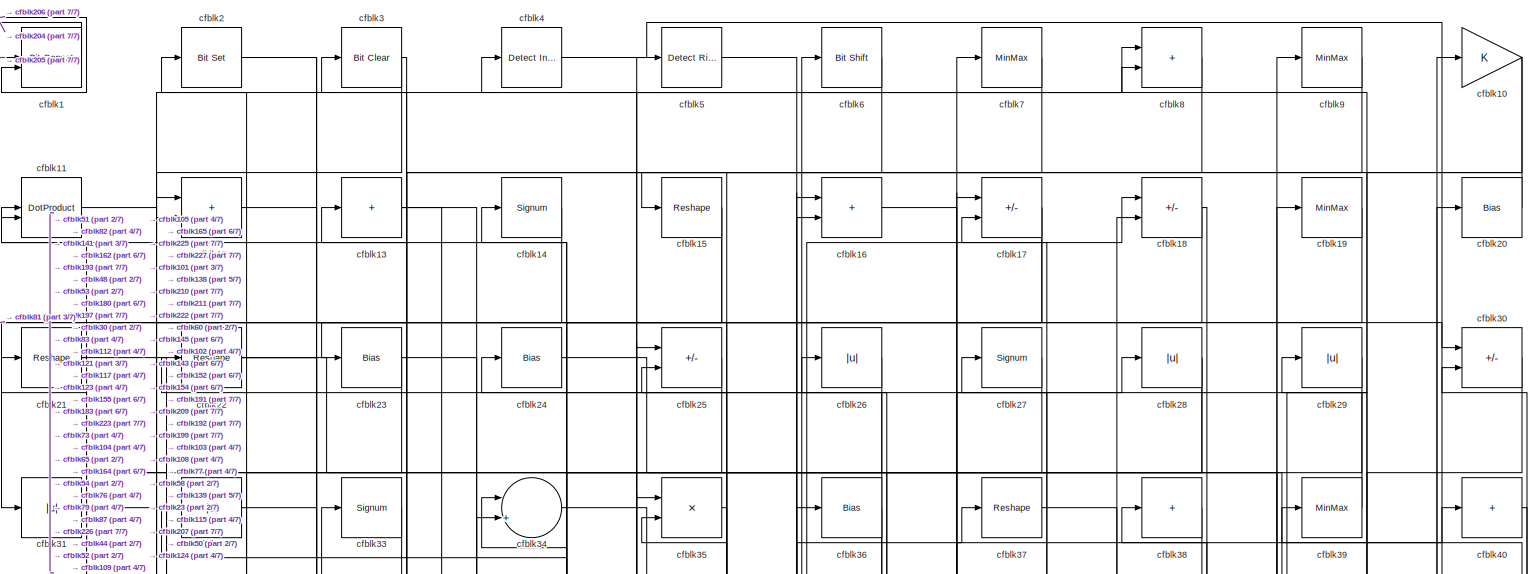
[diagram: root canvas - part 1/7, full width, top band]
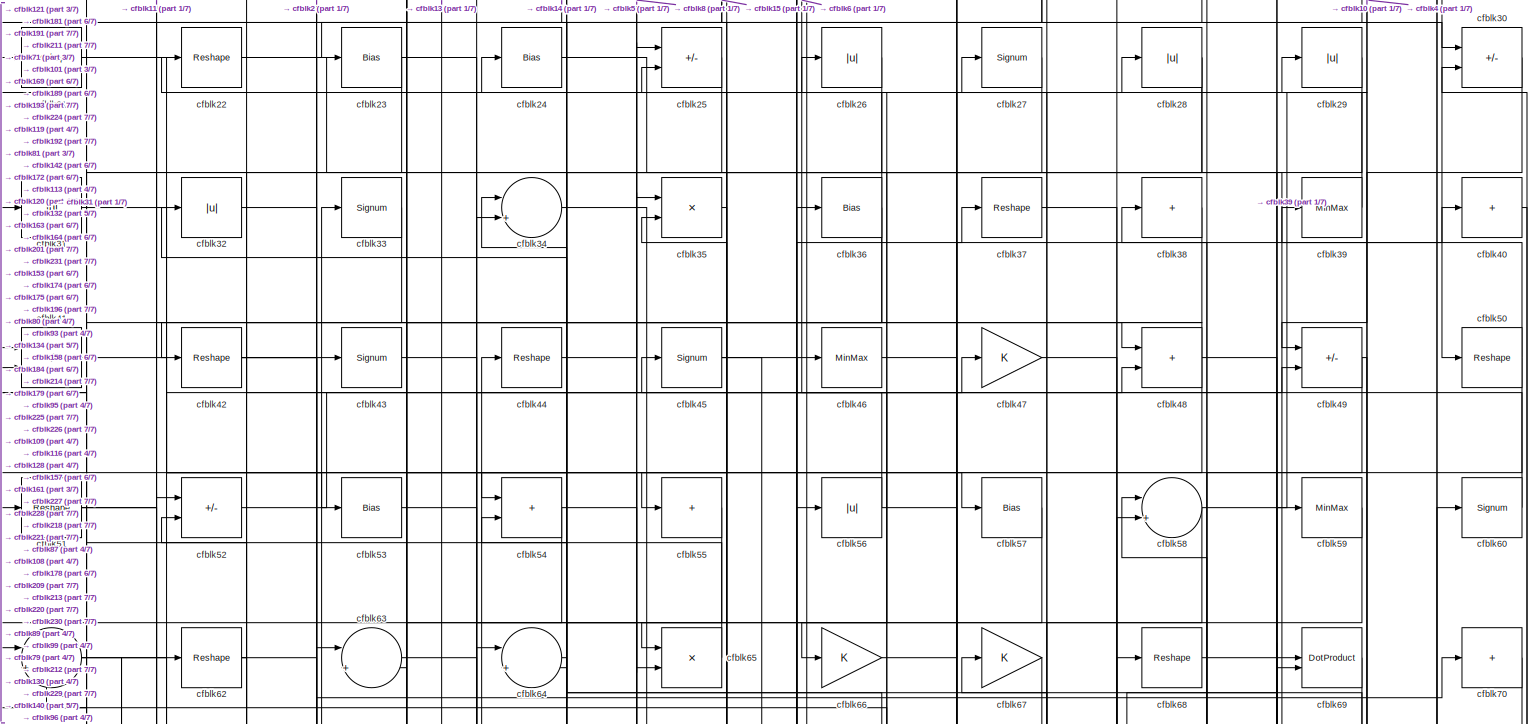
[diagram: root canvas - part 2/7, full width, top band]
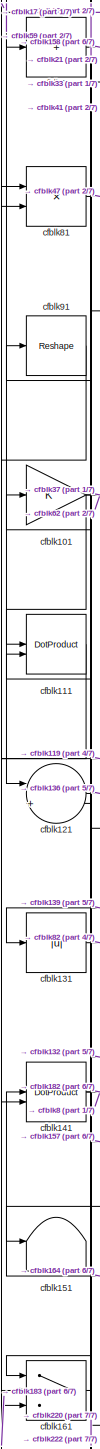
[diagram: root canvas - part 3/7, middle left region]
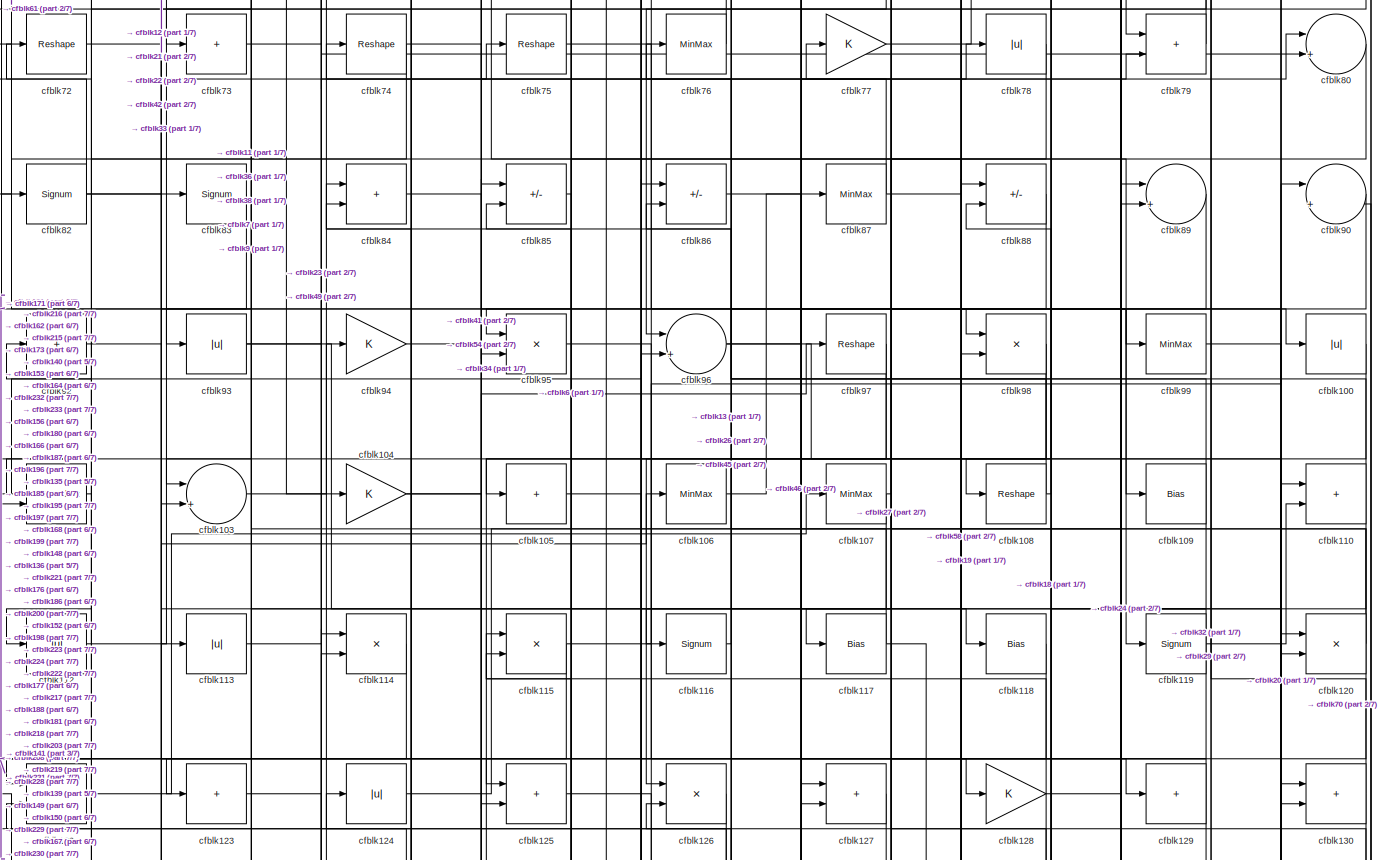
[diagram: root canvas - part 4/7, full width, middle band]
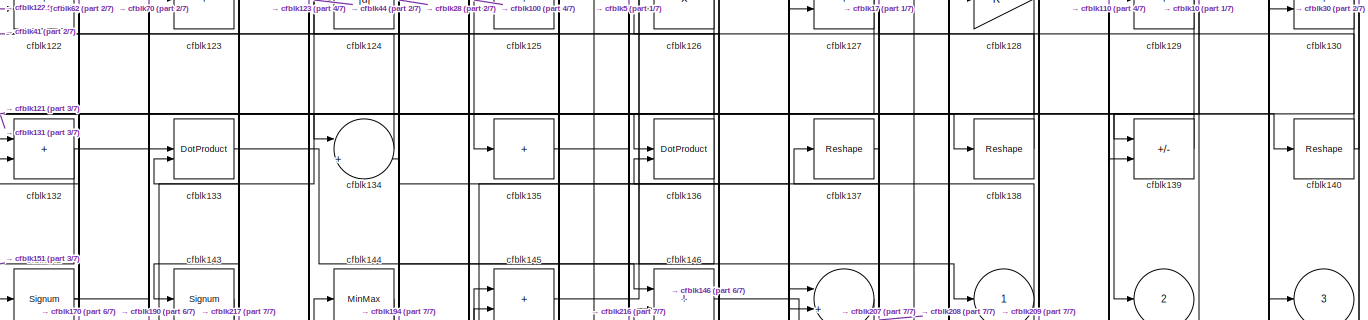
[diagram: root canvas - part 5/7, full width, middle band]
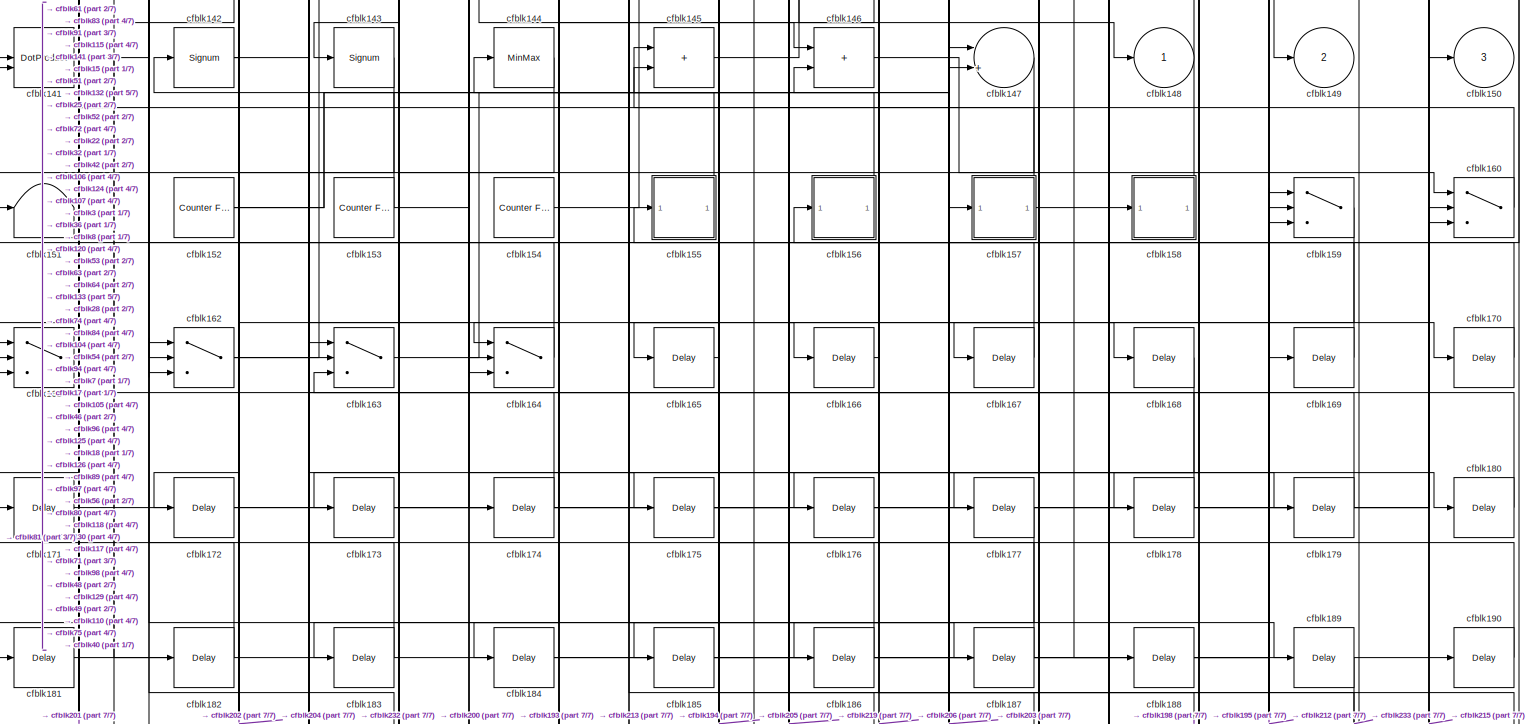
[diagram: root canvas - part 6/7, full width, bottom band]
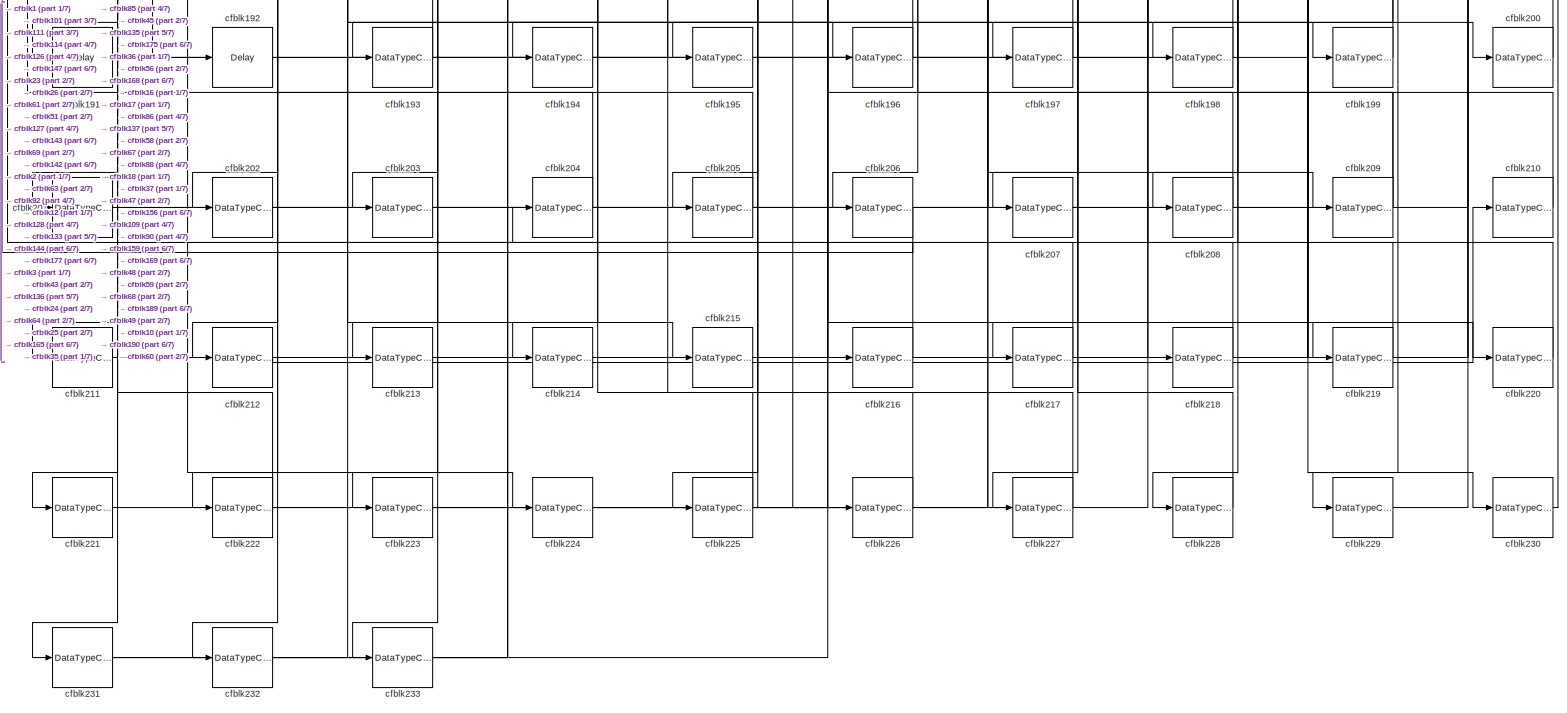
[diagram: root canvas - part 7/7, full width, bottom band]
MODEL slx_88276f80ee25
KIND model
CONFIG AbsTol = auto
CONFIG EnableMultiTasking = off
CONFIG FixedStep = auto
CONFIG MaxStep = auto
CONFIG MinStep = auto
CONFIG RelTol = 1e-3
CONFIG SampleTimeConstraint = Unconstrained
CONFIG SolverName = VariableStepAuto
CONFIG StartTime = 0.0
CONFIG StopTime = 10.0
BLOCK [Reference] cfblk1  REF=hdlsllib/Logic and Bit
Operations/Bit Concat
  SourceBlock = hdlsllib/Logic and Bit\nOperations/Bit Concat
  SourceType = Bit Concat
BLOCK [Gain] cfblk10
BLOCK [Abs] cfblk100
  SaturateOnIntegerOverflow = off
BLOCK [Gain] cfblk101
BLOCK [DotProduct] cfblk102
  OutDataTypeStr = Inherit: Inherit via internal rule
BLOCK [Sum] cfblk103
  Inputs = |++
BLOCK [Gain] cfblk104
BLOCK [Sum] cfblk105
  IconShape = rectangular
  Inputs = +
BLOCK [MinMax] cfblk106
BLOCK [MinMax] cfblk107
BLOCK [Reshape] cfblk108
BLOCK [Bias] cfblk109
  Bias = 0.0
  SaturateOnIntegerOverflow = off
BLOCK [DotProduct] cfblk11
  OutDataTypeStr = Inherit: Inherit via internal rule
BLOCK [Sum] cfblk110
  IconShape = rectangular
BLOCK [DotProduct] cfblk111
  OutDataTypeStr = Inherit: Inherit via internal rule
BLOCK [Abs] cfblk112
  SaturateOnIntegerOverflow = off
BLOCK [Abs] cfblk113
  SaturateOnIntegerOverflow = off
BLOCK [Product] cfblk114
  Inputs = */
  RndMeth = Zero
  SaturateOnIntegerOverflow = on
BLOCK [Product] cfblk115
  Inputs = */
  RndMeth = Zero
  SaturateOnIntegerOverflow = on
BLOCK [Signum] cfblk116
BLOCK [Bias] cfblk117
  Bias = 0.0
  SaturateOnIntegerOverflow = off
BLOCK [Bias] cfblk118
  Bias = 0.0
  SaturateOnIntegerOverflow = off
BLOCK [Signum] cfblk119
BLOCK [Sum] cfblk12
  IconShape = rectangular
BLOCK [Product] cfblk120
  Inputs = */
  RndMeth = Zero
  SaturateOnIntegerOverflow = on
BLOCK [Sum] cfblk121
  Inputs = |++
BLOCK [Sum] cfblk122
  IconShape = rectangular
BLOCK [Sum] cfblk123
  IconShape = rectangular
  Inputs = +
BLOCK [Abs] cfblk124
  SaturateOnIntegerOverflow = off
BLOCK [Sum] cfblk125
  IconShape = rectangular
BLOCK [Product] cfblk126
  Inputs = */
  RndMeth = Zero
  SaturateOnIntegerOverflow = on
BLOCK [Sum] cfblk127
  IconShape = rectangular
BLOCK [Gain] cfblk128
BLOCK [Sum] cfblk129
  IconShape = rectangular
  Inputs = +
BLOCK [Sum] cfblk13
  IconShape = rectangular
  Inputs = +
BLOCK [Sum] cfblk130
  IconShape = rectangular
BLOCK [Abs] cfblk131
  SaturateOnIntegerOverflow = off
BLOCK [Sum] cfblk132
  IconShape = rectangular
BLOCK [DotProduct] cfblk133
  OutDataTypeStr = Inherit: Inherit via internal rule
BLOCK [Sum] cfblk134
  Inputs = |++
BLOCK [Sum] cfblk135
  IconShape = rectangular
  Inputs = +
BLOCK [DotProduct] cfblk136
  OutDataTypeStr = Inherit: Inherit via internal rule
BLOCK [Reshape] cfblk137
BLOCK [Reshape] cfblk138
BLOCK [Sum] cfblk139
  IconShape = rectangular
  Inputs = +-
BLOCK [Signum] cfblk14
BLOCK [Reshape] cfblk140
BLOCK [DotProduct] cfblk141
  OutDataTypeStr = Inherit: Inherit via internal rule
BLOCK [Signum] cfblk142
BLOCK [Signum] cfblk143
BLOCK [MinMax] cfblk144
BLOCK [Sum] cfblk145
  IconShape = rectangular
BLOCK [Sum] cfblk146
  IconShape = rectangular
BLOCK [Sum] cfblk147
  Inputs = |++
BLOCK [Outport] cfblk148
  VectorParamsAs1DForOutWhenUnconnected = off
BLOCK [Outport] cfblk149
  Port = 2
  VectorParamsAs1DForOutWhenUnconnected = off
BLOCK [Reshape] cfblk15
BLOCK [Outport] cfblk150
  Port = 3
  VectorParamsAs1DForOutWhenUnconnected = off
BLOCK [Terminator] cfblk151
BLOCK [Reference] cfblk152  REF=hdlsllib/Sources/Counter
Free-Running
  SourceBlock = hdlsllib/Sources/Counter\nFree-Running
  SourceType = Counter Free-Running
BLOCK [Reference] cfblk153  REF=hdlsllib/Sources/Counter
Free-Running
  SourceBlock = hdlsllib/Sources/Counter\nFree-Running
  SourceType = Counter Free-Running
BLOCK [Reference] cfblk154  REF=hdlsllib/Sources/Counter
Free-Running
  SourceBlock = hdlsllib/Sources/Counter\nFree-Running
  SourceType = Counter Free-Running
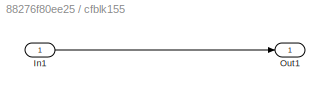
BLOCK [SubSystem] cfblk155
  LibrarySourceBlock = hdlsllib/Ports &\nSubsystems/Subsystem
BLOCK [Inport] cfblk155/In1
BLOCK [Outport] cfblk155/Out1
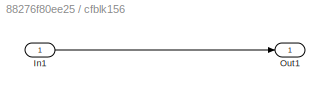
BLOCK [SubSystem] cfblk156
  LibrarySourceBlock = hdlsllib/Ports &\nSubsystems/Subsystem
BLOCK [Inport] cfblk156/In1
BLOCK [Outport] cfblk156/Out1
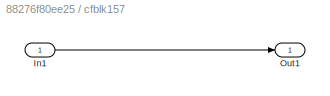
BLOCK [SubSystem] cfblk157
  LibrarySourceBlock = hdlsllib/Ports &\nSubsystems/Subsystem
BLOCK [Inport] cfblk157/In1
BLOCK [Outport] cfblk157/Out1
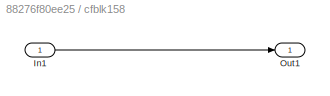
BLOCK [SubSystem] cfblk158
  LibrarySourceBlock = hdlsllib/Ports &\nSubsystems/Subsystem
BLOCK [Inport] cfblk158/In1
BLOCK [Outport] cfblk158/Out1
BLOCK [Switch] cfblk159
  InputSameDT = off
  SaturateOnIntegerOverflow = off
BLOCK [Sum] cfblk16
  IconShape = rectangular
BLOCK [Switch] cfblk160
  InputSameDT = off
  SaturateOnIntegerOverflow = off
BLOCK [Switch] cfblk161
  InputSameDT = off
  SaturateOnIntegerOverflow = off
BLOCK [Switch] cfblk162
  InputSameDT = off
  SaturateOnIntegerOverflow = off
BLOCK [Switch] cfblk163
  InputSameDT = off
  SaturateOnIntegerOverflow = off
BLOCK [Switch] cfblk164
  InputSameDT = off
  SaturateOnIntegerOverflow = off
BLOCK [Delay] cfblk165
  InputPortMap = u0
  SampleTime = 1
BLOCK [Delay] cfblk166
  InputPortMap = u0
  SampleTime = 1
BLOCK [Delay] cfblk167
  InputPortMap = u0
  SampleTime = 1
BLOCK [Delay] cfblk168
  InputPortMap = u0
  SampleTime = 1
BLOCK [Delay] cfblk169
  InputPortMap = u0
  SampleTime = 1
BLOCK [Sum] cfblk17
  IconShape = rectangular
  Inputs = +-
BLOCK [Delay] cfblk170
  InputPortMap = u0
  SampleTime = 1
BLOCK [Delay] cfblk171
  InputPortMap = u0
  SampleTime = 1
BLOCK [Delay] cfblk172
  InputPortMap = u0
  SampleTime = 1
BLOCK [Delay] cfblk173
  InputPortMap = u0
  SampleTime = 1
BLOCK [Delay] cfblk174
  InputPortMap = u0
  SampleTime = 1
BLOCK [Delay] cfblk175
  InputPortMap = u0
  SampleTime = 1
BLOCK [Delay] cfblk176
  InputPortMap = u0
  SampleTime = 1
BLOCK [Delay] cfblk177
  InputPortMap = u0
  SampleTime = 1
BLOCK [Delay] cfblk178
  InputPortMap = u0
  SampleTime = 1
BLOCK [Delay] cfblk179
  InputPortMap = u0
  SampleTime = 1
BLOCK [Sum] cfblk18
  IconShape = rectangular
  Inputs = +-
BLOCK [Delay] cfblk180
  InputPortMap = u0
  SampleTime = 1
BLOCK [Delay] cfblk181
  InputPortMap = u0
  SampleTime = 1
BLOCK [Delay] cfblk182
  InputPortMap = u0
  SampleTime = 1
BLOCK [Delay] cfblk183
  InputPortMap = u0
  SampleTime = 1
BLOCK [Delay] cfblk184
  InputPortMap = u0
  SampleTime = 1
BLOCK [Delay] cfblk185
  InputPortMap = u0
  SampleTime = 1
BLOCK [Delay] cfblk186
  InputPortMap = u0
  SampleTime = 1
BLOCK [Delay] cfblk187
  InputPortMap = u0
  SampleTime = 1
BLOCK [Delay] cfblk188
  InputPortMap = u0
  SampleTime = 1
BLOCK [Delay] cfblk189
  InputPortMap = u0
  SampleTime = 1
BLOCK [MinMax] cfblk19
BLOCK [Delay] cfblk190
  InputPortMap = u0
  SampleTime = 1
BLOCK [Delay] cfblk191
  InputPortMap = u0
  SampleTime = 1
BLOCK [Delay] cfblk192
  InputPortMap = u0
  SampleTime = 1
BLOCK [DataTypeConversion] cfblk193
  RndMeth = Floor
  SaturateOnIntegerOverflow = off
BLOCK [DataTypeConversion] cfblk194
  OutDataTypeStr = uint8
  RndMeth = Floor
  SaturateOnIntegerOverflow = off
BLOCK [DataTypeConversion] cfblk195
  OutDataTypeStr = uint8
  RndMeth = Floor
  SaturateOnIntegerOverflow = off
BLOCK [DataTypeConversion] cfblk196
  OutDataTypeStr = uint8
  RndMeth = Floor
  SaturateOnIntegerOverflow = off
BLOCK [DataTypeConversion] cfblk197
  OutDataTypeStr = uint8
  RndMeth = Floor
  SaturateOnIntegerOverflow = off
BLOCK [DataTypeConversion] cfblk198
  OutDataTypeStr = uint8
  RndMeth = Floor
  SaturateOnIntegerOverflow = off
BLOCK [DataTypeConversion] cfblk199
  OutDataTypeStr = uint8
  RndMeth = Floor
  SaturateOnIntegerOverflow = off
BLOCK [Reference] cfblk2  REF=simulink/Logic and Bit
Operations/Bit Set
  LibrarySourceBlock = hdlsllib/Logic and Bit\nOperations/Bit Set
  SourceBlock = simulink/Logic and Bit\nOperations/Bit Set
  SourceType = Bit Set
BLOCK [Bias] cfblk20
  Bias = 0.0
  SaturateOnIntegerOverflow = off
BLOCK [DataTypeConversion] cfblk200
  OutDataTypeStr = uint8
  RndMeth = Floor
  SaturateOnIntegerOverflow = off
BLOCK [DataTypeConversion] cfblk201
  RndMeth = Floor
  SaturateOnIntegerOverflow = off
BLOCK [DataTypeConversion] cfblk202
  OutDataTypeStr = uint8
  RndMeth = Floor
  SaturateOnIntegerOverflow = off
BLOCK [DataTypeConversion] cfblk203
  OutDataTypeStr = uint8
  RndMeth = Floor
  SaturateOnIntegerOverflow = off
BLOCK [DataTypeConversion] cfblk204
  OutDataTypeStr = uint8
  RndMeth = Floor
  SaturateOnIntegerOverflow = off
BLOCK [DataTypeConversion] cfblk205
  OutDataTypeStr = uint8
  RndMeth = Floor
  SaturateOnIntegerOverflow = off
BLOCK [DataTypeConversion] cfblk206
  OutDataTypeStr = uint8
  RndMeth = Floor
  SaturateOnIntegerOverflow = off
BLOCK [DataTypeConversion] cfblk207
  OutDataTypeStr = uint8
  RndMeth = Floor
  SaturateOnIntegerOverflow = off
BLOCK [DataTypeConversion] cfblk208
  OutDataTypeStr = uint8
  RndMeth = Floor
  SaturateOnIntegerOverflow = off
BLOCK [DataTypeConversion] cfblk209
  RndMeth = Floor
  SaturateOnIntegerOverflow = off
BLOCK [Reshape] cfblk21
BLOCK [DataTypeConversion] cfblk210
  OutDataTypeStr = uint8
  RndMeth = Floor
  SaturateOnIntegerOverflow = off
BLOCK [DataTypeConversion] cfblk211
  OutDataTypeStr = uint8
  RndMeth = Floor
  SaturateOnIntegerOverflow = off
BLOCK [DataTypeConversion] cfblk212
  RndMeth = Floor
  SaturateOnIntegerOverflow = off
BLOCK [DataTypeConversion] cfblk213
  OutDataTypeStr = uint8
  RndMeth = Floor
  SaturateOnIntegerOverflow = off
BLOCK [DataTypeConversion] cfblk214
  OutDataTypeStr = uint8
  RndMeth = Floor
  SaturateOnIntegerOverflow = off
BLOCK [DataTypeConversion] cfblk215
  OutDataTypeStr = uint8
  RndMeth = Floor
  SaturateOnIntegerOverflow = off
BLOCK [DataTypeConversion] cfblk216
  OutDataTypeStr = uint8
  RndMeth = Floor
  SaturateOnIntegerOverflow = off
BLOCK [DataTypeConversion] cfblk217
  OutDataTypeStr = uint8
  RndMeth = Floor
  SaturateOnIntegerOverflow = off
BLOCK [DataTypeConversion] cfblk218
  OutDataTypeStr = uint8
  RndMeth = Floor
  SaturateOnIntegerOverflow = off
BLOCK [DataTypeConversion] cfblk219
  OutDataTypeStr = uint8
  RndMeth = Floor
  SaturateOnIntegerOverflow = off
BLOCK [Reshape] cfblk22
BLOCK [DataTypeConversion] cfblk220
  OutDataTypeStr = uint8
  RndMeth = Floor
  SaturateOnIntegerOverflow = off
BLOCK [DataTypeConversion] cfblk221
  OutDataTypeStr = uint8
  RndMeth = Floor
  SaturateOnIntegerOverflow = off
BLOCK [DataTypeConversion] cfblk222
  RndMeth = Floor
  SaturateOnIntegerOverflow = off
BLOCK [DataTypeConversion] cfblk223
  OutDataTypeStr = uint8
  RndMeth = Floor
  SaturateOnIntegerOverflow = off
BLOCK [DataTypeConversion] cfblk224
  OutDataTypeStr = uint8
  RndMeth = Floor
  SaturateOnIntegerOverflow = off
BLOCK [DataTypeConversion] cfblk225
  RndMeth = Floor
  SaturateOnIntegerOverflow = off
BLOCK [DataTypeConversion] cfblk226
  OutDataTypeStr = uint8
  RndMeth = Floor
  SaturateOnIntegerOverflow = off
BLOCK [DataTypeConversion] cfblk227
  OutDataTypeStr = uint8
  RndMeth = Floor
  SaturateOnIntegerOverflow = off
BLOCK [DataTypeConversion] cfblk228
  OutDataTypeStr = uint8
  RndMeth = Floor
  SaturateOnIntegerOverflow = off
BLOCK [DataTypeConversion] cfblk229
  OutDataTypeStr = uint8
  RndMeth = Floor
  SaturateOnIntegerOverflow = off
BLOCK [Bias] cfblk23
  Bias = 0.0
  SaturateOnIntegerOverflow = off
BLOCK [DataTypeConversion] cfblk230
  OutDataTypeStr = uint8
  RndMeth = Floor
  SaturateOnIntegerOverflow = off
BLOCK [DataTypeConversion] cfblk231
  RndMeth = Floor
  SaturateOnIntegerOverflow = off
BLOCK [DataTypeConversion] cfblk232
  OutDataTypeStr = uint8
  RndMeth = Floor
  SaturateOnIntegerOverflow = off
BLOCK [DataTypeConversion] cfblk233
  OutDataTypeStr = uint8
  RndMeth = Floor
  SaturateOnIntegerOverflow = off
BLOCK [Bias] cfblk24
  Bias = 0.0
  SaturateOnIntegerOverflow = off
BLOCK [Sum] cfblk25
  IconShape = rectangular
  Inputs = +-
BLOCK [Abs] cfblk26
  SaturateOnIntegerOverflow = off
BLOCK [Signum] cfblk27
BLOCK [Abs] cfblk28
  SaturateOnIntegerOverflow = off
BLOCK [Abs] cfblk29
  SaturateOnIntegerOverflow = off
BLOCK [Reference] cfblk3  REF=simulink/Logic and Bit
Operations/Bit Clear
  LibrarySourceBlock = hdlsllib/Logic and Bit\nOperations/Bit Clear
  SourceBlock = simulink/Logic and Bit\nOperations/Bit Clear
  SourceType = Bit Clear
BLOCK [Sum] cfblk30
  IconShape = rectangular
  Inputs = +-
BLOCK [Abs] cfblk31
  SaturateOnIntegerOverflow = off
BLOCK [Abs] cfblk32
  SaturateOnIntegerOverflow = off
BLOCK [Signum] cfblk33
BLOCK [Sum] cfblk34
  Inputs = |++
BLOCK [Product] cfblk35
  Inputs = */
  RndMeth = Zero
  SaturateOnIntegerOverflow = on
BLOCK [Bias] cfblk36
  Bias = 0.0
  SaturateOnIntegerOverflow = off
BLOCK [Reshape] cfblk37
BLOCK [Sum] cfblk38
  IconShape = rectangular
  Inputs = +
BLOCK [MinMax] cfblk39
BLOCK [Reference] cfblk4  REF=simulink/Logic and Bit
Operations/Detect
Increase
  LibrarySourceBlock = hdlsllib/Logic and Bit\nOperations/Detect\nIncrease
  SourceBlock = simulink/Logic and Bit\nOperations/Detect\nIncrease
  SourceType = Detect Increase
BLOCK [Sum] cfblk40
  IconShape = rectangular
  Inputs = +
BLOCK [Sum] cfblk41
  IconShape = rectangular
  Inputs = +-
BLOCK [Reshape] cfblk42
BLOCK [Signum] cfblk43
BLOCK [Reshape] cfblk44
BLOCK [Signum] cfblk45
BLOCK [MinMax] cfblk46
BLOCK [Gain] cfblk47
BLOCK [Sum] cfblk48
  IconShape = rectangular
BLOCK [Sum] cfblk49
  IconShape = rectangular
  Inputs = +-
BLOCK [Reference] cfblk5  REF=hdlsllib/Logic and Bit
Operations/Detect Rise
Positive
  SourceBlock = hdlsllib/Logic and Bit\nOperations/Detect Rise\nPositive
  SourceType = Detect Rise Positive
BLOCK [Reshape] cfblk50
BLOCK [Reshape] cfblk51
BLOCK [Sum] cfblk52
  IconShape = rectangular
  Inputs = +-
BLOCK [Bias] cfblk53
  Bias = 0.0
  SaturateOnIntegerOverflow = off
BLOCK [Sum] cfblk54
  IconShape = rectangular
BLOCK [Sum] cfblk55
  IconShape = rectangular
  Inputs = +
BLOCK [Abs] cfblk56
  SaturateOnIntegerOverflow = off
BLOCK [Bias] cfblk57
  Bias = 0.0
  SaturateOnIntegerOverflow = off
BLOCK [Sum] cfblk58
  Inputs = |++
BLOCK [MinMax] cfblk59
BLOCK [Reference] cfblk6  REF=hdlsllib/Logic and Bit
Operations/Bit Shift
  SourceBlock = hdlsllib/Logic and Bit\nOperations/Bit Shift
  SourceType = Bit Shift
BLOCK [Signum] cfblk60
BLOCK [Sum] cfblk61
  Inputs = |++
BLOCK [Reshape] cfblk62
BLOCK [Sum] cfblk63
  Inputs = |++
BLOCK [Sum] cfblk64
  Inputs = |++
BLOCK [Product] cfblk65
  Inputs = */
  RndMeth = Zero
  SaturateOnIntegerOverflow = on
BLOCK [Gain] cfblk66
BLOCK [Gain] cfblk67
BLOCK [Reshape] cfblk68
BLOCK [DotProduct] cfblk69
  OutDataTypeStr = Inherit: Inherit via internal rule
BLOCK [MinMax] cfblk7
BLOCK [Sum] cfblk70
  IconShape = rectangular
  Inputs = +
BLOCK [Sum] cfblk71
  IconShape = rectangular
  Inputs = +
BLOCK [Reshape] cfblk72
BLOCK [Sum] cfblk73
  IconShape = rectangular
  Inputs = +
BLOCK [Reshape] cfblk74
BLOCK [Reshape] cfblk75
BLOCK [MinMax] cfblk76
BLOCK [Gain] cfblk77
BLOCK [Abs] cfblk78
  SaturateOnIntegerOverflow = off
BLOCK [Sum] cfblk79
  IconShape = rectangular
BLOCK [Sum] cfblk8
  IconShape = rectangular
BLOCK [Sum] cfblk80
  Inputs = |++
BLOCK [Product] cfblk81
  Inputs = */
  RndMeth = Zero
  SaturateOnIntegerOverflow = on
BLOCK [Signum] cfblk82
BLOCK [Signum] cfblk83
BLOCK [Sum] cfblk84
  IconShape = rectangular
BLOCK [Sum] cfblk85
  IconShape = rectangular
  Inputs = +-
BLOCK [Sum] cfblk86
  IconShape = rectangular
  Inputs = +-
BLOCK [MinMax] cfblk87
BLOCK [Sum] cfblk88
  IconShape = rectangular
  Inputs = +-
BLOCK [Sum] cfblk89
  Inputs = |++
BLOCK [MinMax] cfblk9
BLOCK [Sum] cfblk90
  Inputs = |++
BLOCK [Reshape] cfblk91
BLOCK [Sum] cfblk92
  IconShape = rectangular
  Inputs = +
BLOCK [Abs] cfblk93
  SaturateOnIntegerOverflow = off
BLOCK [Gain] cfblk94
BLOCK [Product] cfblk95
  Inputs = */
  RndMeth = Zero
  SaturateOnIntegerOverflow = on
BLOCK [Sum] cfblk96
  Inputs = |++
BLOCK [Reshape] cfblk97
BLOCK [Product] cfblk98
  Inputs = */
  RndMeth = Zero
  SaturateOnIntegerOverflow = on
BLOCK [MinMax] cfblk99
LINE cfblk100:1 -> cfblk135:1
NET cfblk101:1 -> cfblk111:1, cfblk37:1, cfblk62:1
LINE cfblk102:1 -> cfblk122:1
LINE cfblk103:1 -> cfblk94:1
NET cfblk104:1 -> cfblk187:1, cfblk97:1
LINE cfblk105:1 -> cfblk168:1
LINE cfblk106:1 -> cfblk87:1
NET cfblk107:1 -> cfblk173:1, cfblk77:1
NET cfblk108:1 -> cfblk38:1, cfblk61:2
NET cfblk109:1 -> cfblk208:1, cfblk45:1
NET cfblk10:1 -> cfblk139:1, cfblk23:1
NET cfblk110:1 -> cfblk139:2, cfblk84:1
LINE cfblk111:1 -> cfblk161:3
LINE cfblk112:1 -> cfblk33:1
LINE cfblk113:1 -> cfblk75:1
LINE cfblk114:1 -> cfblk231:1
NET cfblk115:1 -> cfblk162:3, cfblk20:1
LINE cfblk116:1 -> cfblk26:1
NET cfblk117:1 -> cfblk11:1, cfblk188:1
LINE cfblk118:1 -> cfblk177:1
NET cfblk119:1 -> cfblk110:2, cfblk116:1, cfblk141:2
LINE cfblk11:1 -> cfblk48:1
NET cfblk120:1 -> cfblk164:3, cfblk27:1, cfblk76:1
LINE cfblk121:1 -> cfblk136:1
LINE cfblk122:1 -> cfblk107:1
LINE cfblk123:1 -> cfblk140:1
LINE cfblk124:1 -> cfblk9:1
LINE cfblk125:1 -> cfblk148:1
LINE cfblk126:1 -> cfblk221:1
LINE cfblk127:1 -> cfblk222:1
NET cfblk128:1 -> cfblk115:1, cfblk203:1, cfblk89:2
NET cfblk129:1 -> cfblk125:1, cfblk149:1
LINE cfblk12:1 -> cfblk83:1
NET cfblk130:1 -> cfblk167:1, cfblk29:1
LINE cfblk131:1 -> cfblk82:1
NET cfblk132:1 -> cfblk151:1, cfblk70:1
LINE cfblk133:1 -> cfblk146:1
LINE cfblk134:1 -> cfblk44:1
LINE cfblk135:1 -> cfblk216:1
NET cfblk136:1 -> cfblk122:2, cfblk194:1
LINE cfblk137:1 -> cfblk207:1
LINE cfblk138:1 -> cfblk17:2
LINE cfblk139:1 -> cfblk131:1
NET cfblk13:1 -> cfblk104:1, cfblk65:2
NET cfblk140:1 -> cfblk30:2, cfblk41:1
NET cfblk141:1 -> cfblk182:1, cfblk8:2
NET cfblk142:1 -> cfblk200:1, cfblk52:2
LINE cfblk143:1 -> cfblk202:1
LINE cfblk144:1 -> cfblk193:1
LINE cfblk145:1 -> cfblk18:1
LINE cfblk146:1 -> cfblk160:1
LINE cfblk147:1 -> cfblk201:1
LINE cfblk14:1 -> cfblk51:1
NET cfblk152:1 -> cfblk40:1, cfblk80:1
NET cfblk153:1 -> cfblk64:1, cfblk72:1
LINE cfblk154:1 -> cfblk7:1
LINE cfblk155/In1:1 -> cfblk155/Out1:1
LINE cfblk155:1 -> cfblk3:1
LINE cfblk156/In1:1 -> cfblk156/Out1:1
LINE cfblk156:1 -> cfblk74:1
LINE cfblk157/In1:1 -> cfblk157/Out1:1
NET cfblk157:1 -> cfblk170:1, cfblk91:1
LINE cfblk158/In1:1 -> cfblk158/Out1:1
LINE cfblk158:1 -> cfblk54:2
LINE cfblk159:1 -> cfblk232:1
NET cfblk15:1 -> cfblk162:2, cfblk54:1
LINE cfblk160:1 -> cfblk145:1
LINE cfblk161:1 -> cfblk41:2
NET cfblk162:1 -> cfblk106:1, cfblk124:1
LINE cfblk163:1 -> cfblk46:1
LINE cfblk164:1 -> cfblk141:1
LINE cfblk165:1 -> cfblk205:1
LINE cfblk166:1 -> cfblk146:2
LINE cfblk167:1 -> cfblk126:2
LINE cfblk168:1 -> cfblk206:1
LINE cfblk169:1 -> cfblk52:1
LINE cfblk16:1 -> cfblk209:1
LINE cfblk170:1 -> cfblk132:2
LINE cfblk171:1 -> cfblk96:2
LINE cfblk172:1 -> cfblk160:2
LINE cfblk173:1 -> cfblk110:1
LINE cfblk174:1 -> cfblk163:1
LINE cfblk175:1 -> cfblk219:1
LINE cfblk176:1 -> cfblk130:1
LINE cfblk177:1 -> cfblk213:1
LINE cfblk178:1 -> cfblk61:1
LINE cfblk179:1 -> cfblk163:3
NET cfblk17:1 -> cfblk165:1, cfblk81:2
LINE cfblk180:1 -> cfblk84:2
LINE cfblk181:1 -> cfblk98:2
LINE cfblk182:1 -> cfblk162:1
LINE cfblk183:1 -> cfblk81:1
LINE cfblk184:1 -> cfblk159:1
LINE cfblk185:1 -> cfblk160:3
LINE cfblk186:1 -> cfblk145:2
LINE cfblk187:1 -> cfblk115:2
LINE cfblk188:1 -> cfblk159:2
LINE cfblk189:1 -> cfblk233:1
NET cfblk18:1 -> cfblk108:1, cfblk164:1
LINE cfblk190:1 -> cfblk133:1
LINE cfblk191:1 -> cfblk17:1
LINE cfblk192:1 -> cfblk18:2
NET cfblk193:1 -> cfblk12:1, cfblk25:1
LINE cfblk194:1 -> cfblk144:1
LINE cfblk195:1 -> cfblk169:1
LINE cfblk196:1 -> cfblk85:1
LINE cfblk197:1 -> cfblk85:2
LINE cfblk198:1 -> cfblk156:1
LINE cfblk199:1 -> cfblk86:1
LINE cfblk19:1 -> cfblk31:1
LINE cfblk1:1 -> cfblk204:1
LINE cfblk200:1 -> cfblk86:2
NET cfblk201:1 -> cfblk59:1, cfblk63:1
LINE cfblk202:1 -> cfblk147:1
LINE cfblk203:1 -> cfblk147:2
LINE cfblk204:1 -> cfblk142:1
LINE cfblk205:1 -> cfblk1:1
LINE cfblk206:1 -> cfblk1:2
LINE cfblk207:1 -> cfblk10:1
LINE cfblk208:1 -> cfblk137:1
NET cfblk209:1 -> cfblk136:2, cfblk58:1
LINE cfblk20:1 -> cfblk15:1
LINE cfblk210:1 -> cfblk16:1
LINE cfblk211:1 -> cfblk16:2
NET cfblk212:1 -> cfblk159:3, cfblk210:1, cfblk60:1
LINE cfblk213:1 -> cfblk69:1
LINE cfblk214:1 -> cfblk69:2
LINE cfblk215:1 -> cfblk190:1
LINE cfblk216:1 -> cfblk92:1
LINE cfblk217:1 -> cfblk133:2
LINE cfblk218:1 -> cfblk88:1
LINE cfblk219:1 -> cfblk88:2
NET cfblk21:1 -> cfblk113:1, cfblk71:1
LINE cfblk220:1 -> cfblk101:1
LINE cfblk221:1 -> cfblk68:1
NET cfblk222:1 -> cfblk111:2, cfblk36:1
LINE cfblk223:1 -> cfblk127:1
LINE cfblk224:1 -> cfblk127:2
NET cfblk225:1 -> cfblk24:1, cfblk25:2
LINE cfblk226:1 -> cfblk35:1
LINE cfblk227:1 -> cfblk35:2
LINE cfblk228:1 -> cfblk67:1
LINE cfblk229:1 -> cfblk90:1
NET cfblk22:1 -> cfblk163:2, cfblk89:1, cfblk99:1
LINE cfblk230:1 -> cfblk90:2
NET cfblk231:1 -> cfblk43:1, cfblk56:1
LINE cfblk232:1 -> cfblk114:1
LINE cfblk233:1 -> cfblk114:2
NET cfblk23:1 -> cfblk211:1, cfblk80:2
LINE cfblk24:1 -> cfblk79:1
LINE cfblk25:1 -> cfblk172:1
LINE cfblk26:1 -> cfblk191:1
LINE cfblk27:1 -> cfblk66:1
NET cfblk28:1 -> cfblk134:2, cfblk184:1
LINE cfblk29:1 -> cfblk55:1
NET cfblk2:1 -> cfblk197:1, cfblk30:1
LINE cfblk30:1 -> cfblk49:1
LINE cfblk31:1 -> cfblk53:1
LINE cfblk32:1 -> cfblk180:1
LINE cfblk33:1 -> cfblk121:2
LINE cfblk34:1 -> cfblk109:1
LINE cfblk35:1 -> cfblk225:1
NET cfblk36:1 -> cfblk102:1, cfblk143:1, cfblk2:1
LINE cfblk37:1 -> cfblk199:1
LINE cfblk38:1 -> cfblk103:1
LINE cfblk39:1 -> cfblk14:1
NET cfblk3:1 -> cfblk12:2, cfblk223:1
LINE cfblk40:1 -> cfblk155:1
LINE cfblk41:1 -> cfblk95:2
NET cfblk42:1 -> cfblk120:2, cfblk164:2, cfblk57:1
LINE cfblk43:1 -> cfblk196:1
LINE cfblk44:1 -> cfblk8:1
NET cfblk45:1 -> cfblk226:1, cfblk48:2
LINE cfblk46:1 -> cfblk128:1
LINE cfblk47:1 -> cfblk218:1
NET cfblk48:1 -> cfblk181:1, cfblk230:1, cfblk42:1
NET cfblk49:1 -> cfblk178:1, cfblk229:1
LINE cfblk4:1 -> cfblk50:1
NET cfblk50:1 -> cfblk39:1, cfblk63:2
NET cfblk51:1 -> cfblk189:1, cfblk224:1
LINE cfblk52:1 -> cfblk5:1
LINE cfblk53:1 -> cfblk174:1
NET cfblk54:1 -> cfblk179:1, cfblk93:1
LINE cfblk55:1 -> cfblk64:2
NET cfblk56:1 -> cfblk157:1, cfblk22:1
LINE cfblk57:1 -> cfblk65:1
NET cfblk58:1 -> cfblk227:1, cfblk4:1
LINE cfblk59:1 -> cfblk121:1
LINE cfblk5:1 -> cfblk138:1
LINE cfblk60:1 -> cfblk6:1
NET cfblk61:1 -> cfblk119:1, cfblk192:1
NET cfblk62:1 -> cfblk132:1, cfblk134:1
LINE cfblk63:1 -> cfblk175:1
LINE cfblk64:1 -> cfblk214:1
LINE cfblk65:1 -> cfblk21:1
LINE cfblk66:1 -> cfblk28:1
LINE cfblk67:1 -> cfblk161:1
LINE cfblk68:1 -> cfblk220:1
LINE cfblk69:1 -> cfblk212:1
LINE cfblk6:1 -> cfblk105:1
LINE cfblk70:1 -> cfblk96:1
LINE cfblk71:1 -> cfblk158:1
LINE cfblk72:1 -> cfblk103:2
LINE cfblk73:1 -> cfblk34:2
NET cfblk74:1 -> cfblk112:1, cfblk79:2
LINE cfblk75:1 -> cfblk150:1
LINE cfblk76:1 -> cfblk13:1
LINE cfblk77:1 -> cfblk19:1
LINE cfblk78:1 -> cfblk95:1
LINE cfblk79:1 -> cfblk32:1
LINE cfblk7:1 -> cfblk123:1
LINE cfblk80:1 -> cfblk117:1
LINE cfblk81:1 -> cfblk47:1
NET cfblk82:1 -> cfblk11:2, cfblk125:2, cfblk78:1
LINE cfblk83:1 -> cfblk171:1
LINE cfblk84:1 -> cfblk98:1
LINE cfblk85:1 -> cfblk195:1
LINE cfblk86:1 -> cfblk198:1
NET cfblk87:1 -> cfblk34:1, cfblk58:2
LINE cfblk88:1 -> cfblk217:1
LINE cfblk89:1 -> cfblk176:1
LINE cfblk8:1 -> cfblk183:1
LINE cfblk90:1 -> cfblk228:1
LINE cfblk91:1 -> cfblk161:2
LINE cfblk92:1 -> cfblk215:1
NET cfblk93:1 -> cfblk118:1, cfblk49:2
LINE cfblk94:1 -> cfblk166:1
LINE cfblk95:1 -> cfblk129:1
NET cfblk96:1 -> cfblk100:1, cfblk130:2
NET cfblk97:1 -> cfblk185:1, cfblk186:1
NET cfblk98:1 -> cfblk102:2, cfblk126:1
LINE cfblk99:1 -> cfblk120:1
LINE cfblk9:1 -> cfblk73:1
note: NET lines group one-source signal fan-out (src -> all destinations, sorted); 1:1 wires keep LINE
